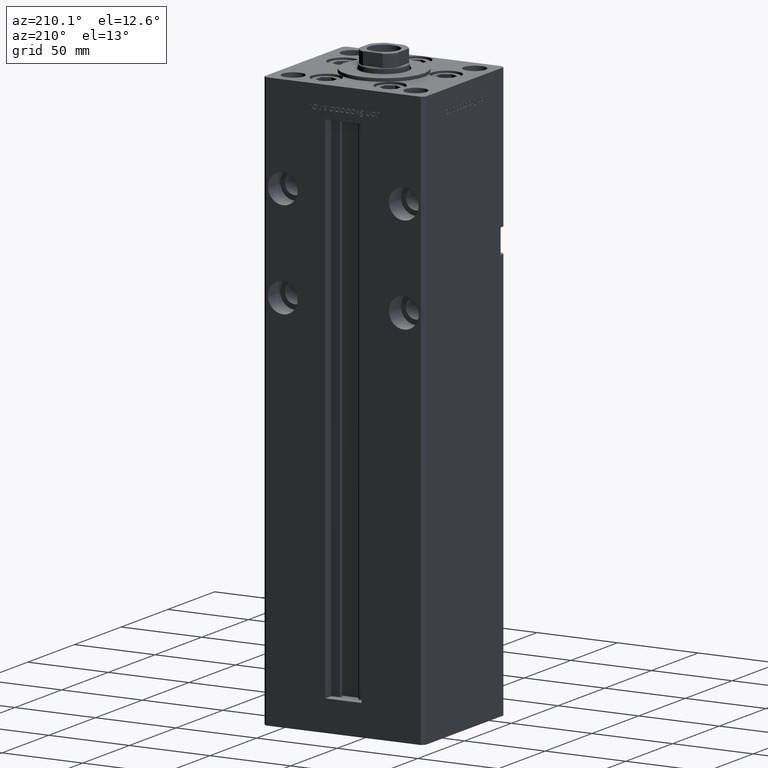
[diagram: clean part render]
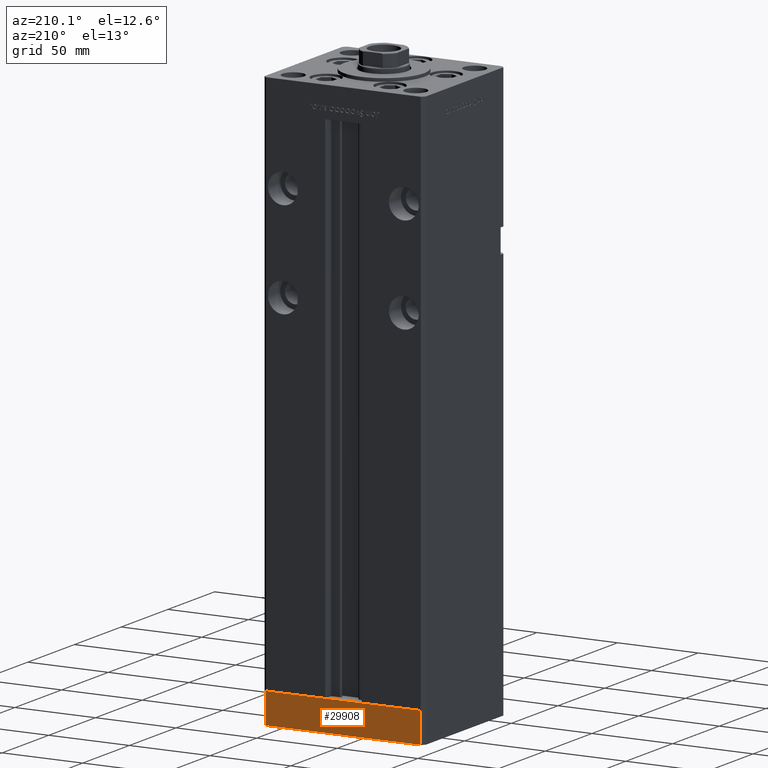
[diagram: same view with one face highlighted and labeled with its STEP entity id]
A machine part, auxiliary view. The second image highlights one B-rep face of the part: STEP entity #29908.
In plain terms, the highlighted planar face has unit normal (-0, 1, 0).
Its self-contained STEP definition (entity closure, byte-faithful):
#1756 = CARTESIAN_POINT ( 'NONE',  ( 47.99999999999990763, 43.50000000000000000, 0.000000000000000000 ) ) ;
#1877 = VECTOR ( 'NONE', #40998, 1000.000000000000000 ) ;
#3307 = CARTESIAN_POINT ( 'NONE',  ( 47.99999999999990763, 43.50000000000000000, -19.00000000000000000 ) ) ;
#3460 = VERTEX_POINT ( 'NONE', #13774 ) ;
#5423 = CARTESIAN_POINT ( 'NONE',  ( 47.99999999999990763, 43.50000000000000000, 0.000000000000000000 ) ) ;
#6440 = EDGE_LOOP ( 'NONE', ( #22574, #18623, #48703, #48415 ) ) ;
#8180 = EDGE_CURVE ( 'NONE', #40308, #3460, #34709, .T. ) ;
#9719 = DIRECTION ( 'NONE',  ( -1.000000000000000000, -3.614007241618350743E-16, 0.000000000000000000 ) ) ;
#11296 = EDGE_CURVE ( 'NONE', #14549, #3460, #21005, .T. ) ;
#13774 = CARTESIAN_POINT ( 'NONE',  ( -48.00000000000000711, 43.49999999999996447, 0.000000000000000000 ) ) ;
#14549 = VERTEX_POINT ( 'NONE', #39518 ) ;
#17672 = VECTOR ( 'NONE', #9719, 1000.000000000000000 ) ;
#18623 = ORIENTED_EDGE ( 'NONE', *, *, #42891, .F. ) ;
#19180 = DIRECTION ( 'NONE',  ( -3.614007241618350743E-16, 1.000000000000000000, 0.000000000000000000 ) ) ;
#19433 = VECTOR ( 'NONE', #38457, 1000.000000000000000 ) ;
#19439 = FACE_OUTER_BOUND ( 'NONE', #6440, .T. ) ;
#21005 = LINE ( 'NONE', #25296, #19433 ) ;
#22574 = ORIENTED_EDGE ( 'NONE', *, *, #8180, .F. ) ;
#22937 = PLANE ( 'NONE',  #37942 ) ;
#24585 = CARTESIAN_POINT ( 'NONE',  ( 47.99999999999990763, 43.50000000000000000, -19.00000000000000000 ) ) ;
#25296 = CARTESIAN_POINT ( 'NONE',  ( -48.00000000000000711, 43.49999999999996447, -19.00000000000000000 ) ) ;
#29694 = EDGE_CURVE ( 'NONE', #32934, #14549, #33471, .T. ) ;
#29878 = CARTESIAN_POINT ( 'NONE',  ( 47.99999999999990763, 43.50000000000000000, -19.00000000000000000 ) ) ;
#29908 = ADVANCED_FACE ( 'NONE', ( #19439 ), #22937, .T. ) ;
#32934 = VERTEX_POINT ( 'NONE', #24585 ) ;
#33471 = LINE ( 'NONE', #49855, #1877 ) ;
#34276 = VECTOR ( 'NONE', #46258, 1000.000000000000000 ) ;
#34709 = LINE ( 'NONE', #5423, #17672 ) ;
#37418 = LINE ( 'NONE', #29878, #34276 ) ;
#37942 = AXIS2_PLACEMENT_3D ( 'NONE', #3307, #19180, #39615 ) ;
#38457 = DIRECTION ( 'NONE',  ( 0.000000000000000000, 0.000000000000000000, 1.000000000000000000 ) ) ;
#39518 = CARTESIAN_POINT ( 'NONE',  ( -48.00000000000000711, 43.49999999999996447, -19.00000000000000000 ) ) ;
#39615 = DIRECTION ( 'NONE',  ( -1.000000000000000000, -3.614007241618350743E-16, 0.000000000000000000 ) ) ;
#40308 = VERTEX_POINT ( 'NONE', #1756 ) ;
#40998 = DIRECTION ( 'NONE',  ( -1.000000000000000000, -3.614007241618350743E-16, 0.000000000000000000 ) ) ;
#42891 = EDGE_CURVE ( 'NONE', #32934, #40308, #37418, .T. ) ;
#46258 = DIRECTION ( 'NONE',  ( 0.000000000000000000, 0.000000000000000000, 1.000000000000000000 ) ) ;
#48415 = ORIENTED_EDGE ( 'NONE', *, *, #11296, .T. ) ;
#48703 = ORIENTED_EDGE ( 'NONE', *, *, #29694, .T. ) ;
#49855 = CARTESIAN_POINT ( 'NONE',  ( 47.99999999999990763, 43.50000000000000000, -19.00000000000000000 ) ) ;